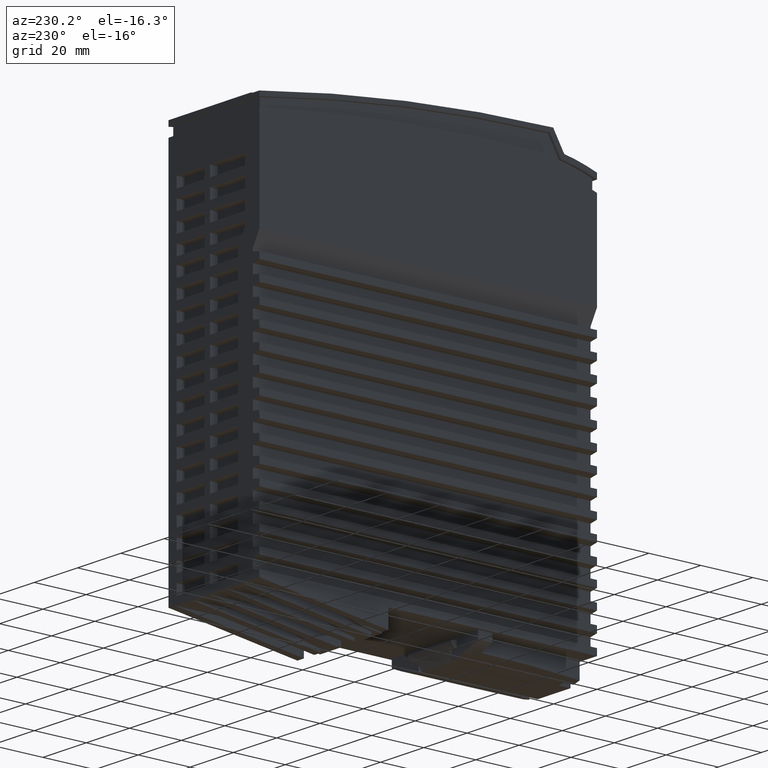
[diagram: clean part render]
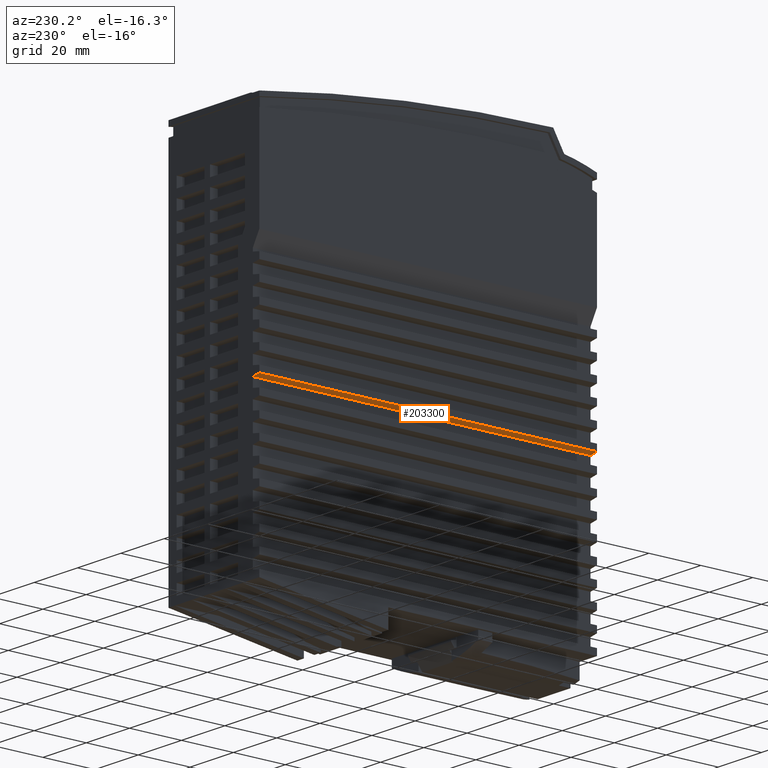
[diagram: same view with one face highlighted and labeled with its STEP entity id]
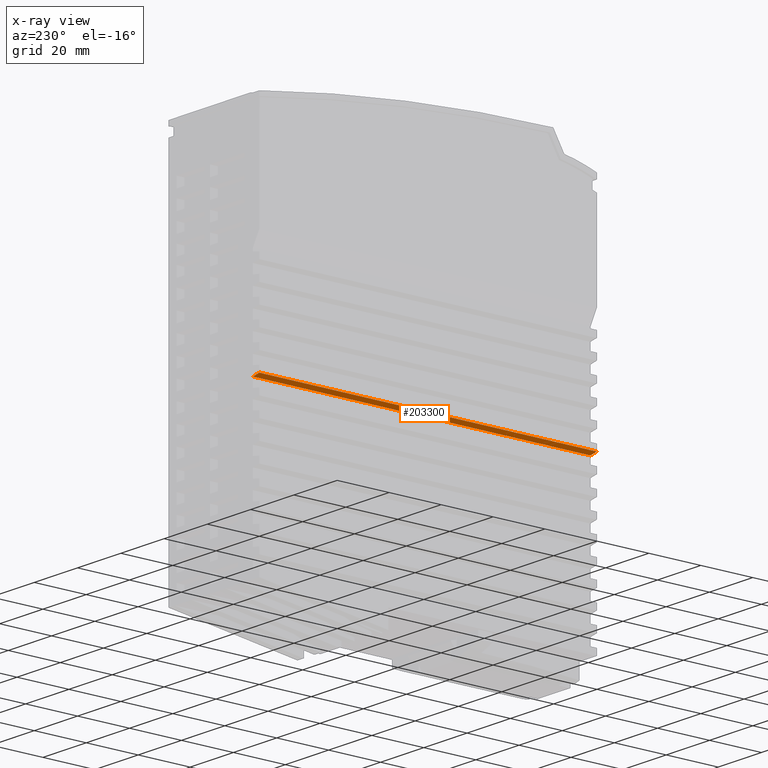
[diagram: x-ray of the same camera — body ghosted, the highlighted face saturated]
A machine part, auxiliary view. The second image highlights one B-rep face of the part: STEP entity #203300.
The next image is the same camera in x-ray: the body ghosted, the highlighted face saturated — about 0% of this face is hidden behind the body in this view.
In plain terms, the highlighted planar face has unit normal (0.1736, 0, 0.9848).
Its self-contained STEP definition (entity closure, byte-faithful):
#27740=CARTESIAN_POINT('',(63.0155095289376,130.,-8.5));
#27750=VERTEX_POINT('',#27740);
#27780=CARTESIAN_POINT('',(63.2800000000002,130.,-7.));
#27790=DIRECTION('',(0.173648177666902,0.,0.984807753012213));
#27800=VECTOR('',#27790,1.);
#27810=LINE('',#27780,#27800);
#27820=CARTESIAN_POINT('',(62.4865285868123,130.,-11.5));
#27830=VERTEX_POINT('',#27820);
#27840=EDGE_CURVE('',#27830,#27750,#27810,.T.);
#87670=CARTESIAN_POINT('',(62.4865285868123,0.,-11.5));
#87680=VERTEX_POINT('',#87670);
#87710=CARTESIAN_POINT('',(63.2800000000002,0.,-7.));
#87720=DIRECTION('',(0.173648177666902,0.,0.984807753012213));
#87730=VECTOR('',#87720,1.);
#87740=LINE('',#87710,#87730);
#87750=CARTESIAN_POINT('',(63.0155095289376,0.,-8.5));
#87760=VERTEX_POINT('',#87750);
#87770=EDGE_CURVE('',#87680,#87760,#87740,.T.);
#197750=CARTESIAN_POINT('',(63.0155095289376,64.9999998943551,-8.5));
#197760=DIRECTION('',(0.,-1.,0.));
#197770=VECTOR('',#197760,1.);
#197780=LINE('',#197750,#197770);
#197790=EDGE_CURVE('',#27750,#87760,#197780,.T.);
#203140=CARTESIAN_POINT('',(62.4865285868123,-13.0000024000001,-11.5));
#203150=DIRECTION('',(0.984807753012213,0.,-0.173648177666902));
#203160=DIRECTION('',(0.173648177666902,0.,0.984807753012213));
#203170=AXIS2_PLACEMENT_3D('',#203140,#203150,#203160);
#203180=PLANE('',#203170);
#203190=ORIENTED_EDGE('',*,*,#87770,.T.);
#203200=CARTESIAN_POINT('',(62.4865285868123,-13.0000024000001,-11.5));
#203210=DIRECTION('',(0.,1.,0.));
#203220=VECTOR('',#203210,1.);
#203230=LINE('',#203200,#203220);
#203240=EDGE_CURVE('',#87680,#27830,#203230,.T.);
#203250=ORIENTED_EDGE('',*,*,#203240,.F.);
#203260=ORIENTED_EDGE('',*,*,#27840,.F.);
#203270=ORIENTED_EDGE('',*,*,#197790,.F.);
#203280=EDGE_LOOP('',(#203270,#203260,#203250,#203190));
#203290=FACE_OUTER_BOUND('',#203280,.T.);
#203300=ADVANCED_FACE('',(#203290),#203180,.F.);